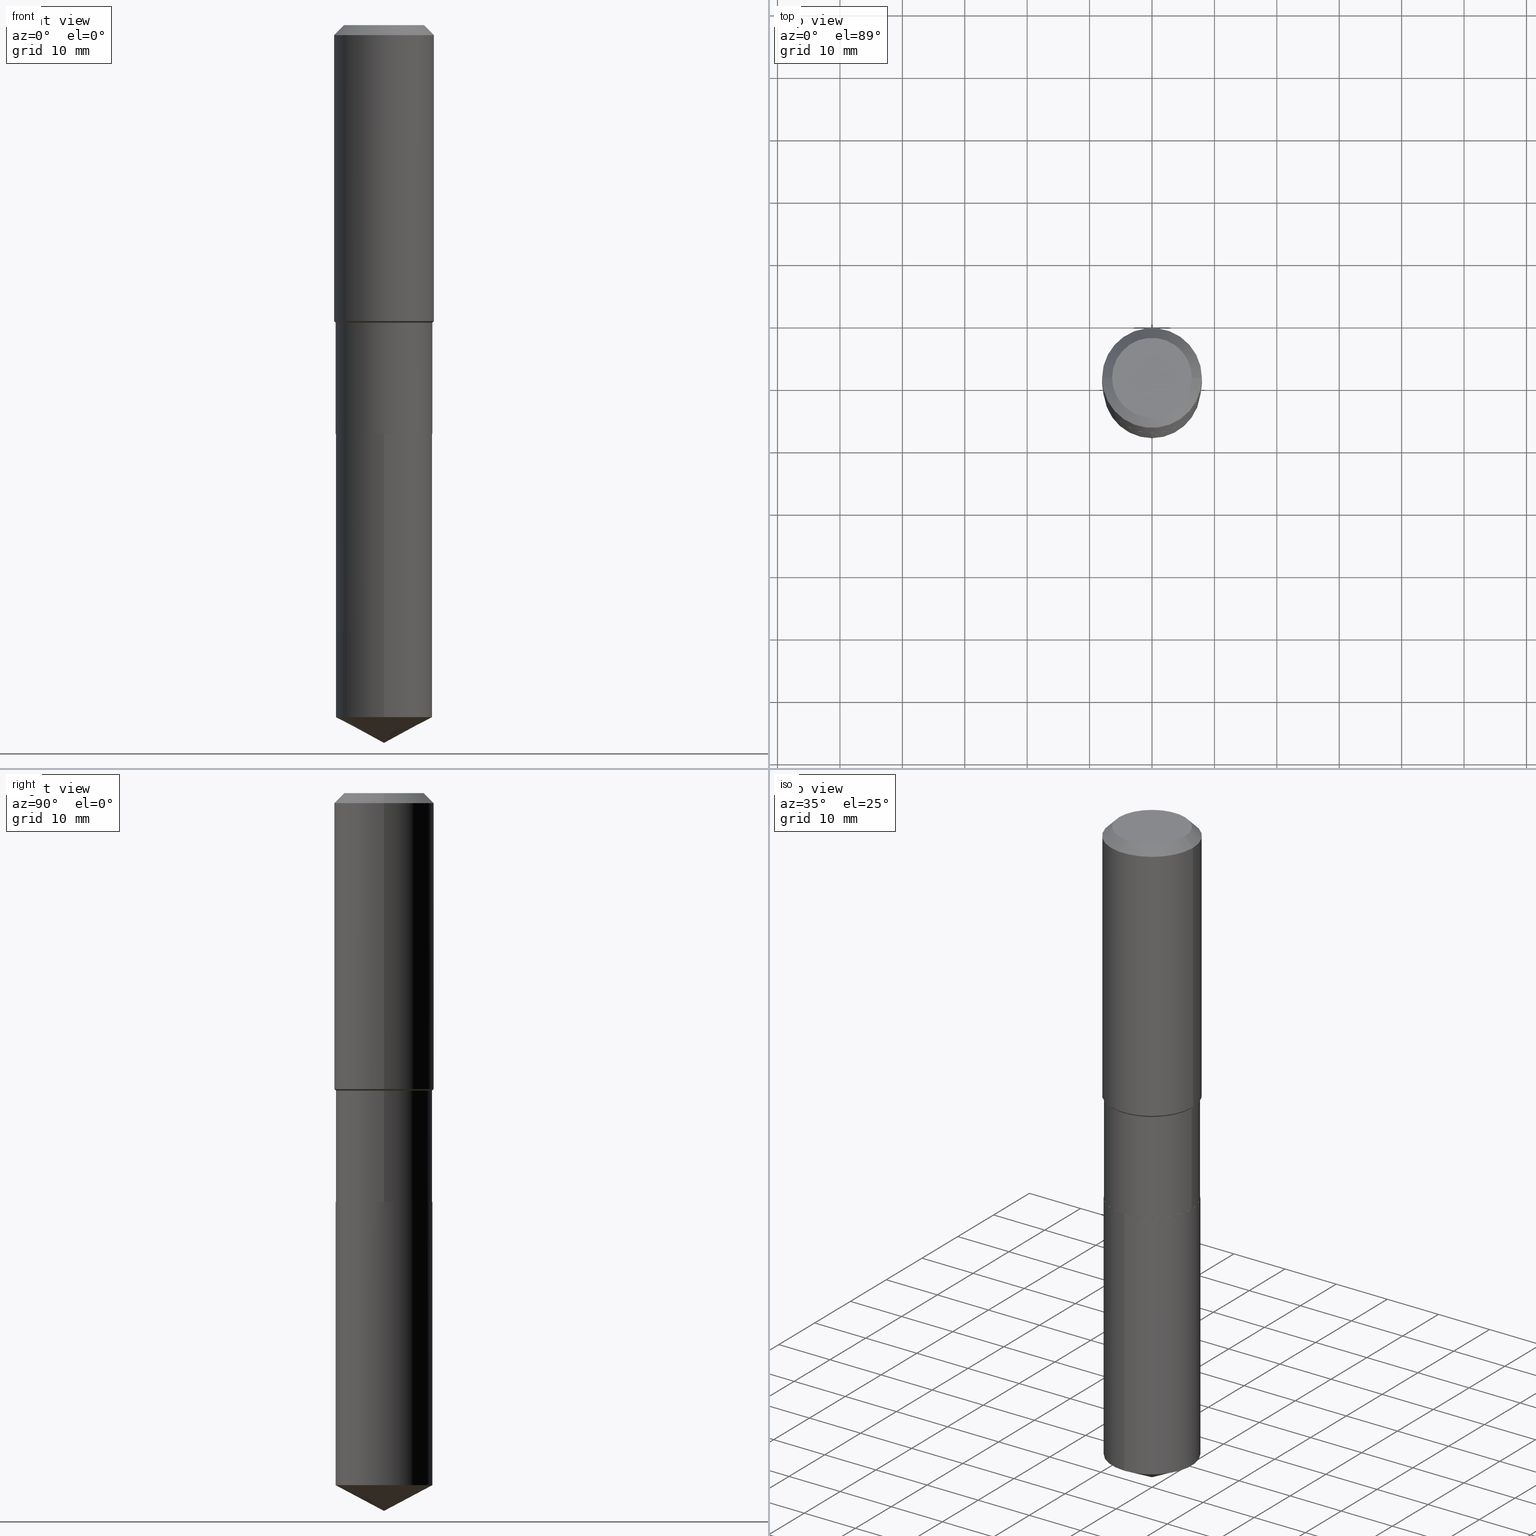
[diagram: canonical four-view strip — front | top / right | iso, engineering-drawing reading convention]
A machine part, canonical four-view strip (front | top / right | iso — engineering-drawing reading convention). The complete STEP part file that produces these views, byte-faithful:
ISO-10303-21;
HEADER;
FILE_DESCRIPTION (( 'STEP AP203' ),
    '1' );
FILE_NAME ('67700.STEP',
    '2024-04-25T09:48:29',
    ( '' ),
    ( '' ),
    'SwSTEP 2.0',
    'SolidWorks 2023',
    '' );
FILE_SCHEMA (( 'CONFIG_CONTROL_DESIGN' ));
ENDSEC;

DATA;
#1 = EDGE_LOOP ( 'NONE', ( #3, #447 ) ) ;
#2 = PERSON_AND_ORGANIZATION_ROLE ( 'classification_officer' ) ;
#3 = ORIENTED_EDGE ( 'NONE', *, *, #165, .T. ) ;
#4 = CIRCLE ( 'NONE', #34, 0.3051000000000000378 ) ;
#5 = CARTESIAN_POINT ( 'NONE',  ( 0.3045999999999999819, -1.113049336009805554E-14, -2.578699999999999548 ) ) ;
#6 = DATE_AND_TIME ( #315, #369 ) ;
#7 = ORIENTED_EDGE ( 'NONE', *, *, #322, .T. ) ;
#8 = CARTESIAN_POINT ( 'NONE',  ( 0.3050999999999999268, -2.130501912962079080E-15, 1.487721534295339594E-29 ) ) ;
#9 =( LENGTH_UNIT ( ) NAMED_UNIT ( * ) SI_UNIT ( $, .METRE. ) );
#10 = EDGE_LOOP ( 'NONE', ( #450, #489, #122, #253 ) ) ;
#11 = CARTESIAN_POINT ( 'NONE',  ( -0.3050999999999999823, -5.609757943602922842E-15, -2.578199999999999381 ) ) ;
#12 = DIRECTION ( 'NONE',  ( -2.445658256467023236E-29, 3.491210035256643450E-15, 1.000000000000000000 ) ) ;
#13 = APPROVAL_STATUS ( 'not_yet_approved' ) ;
#14 = CONICAL_SURFACE ( 'NONE', #82, 74.04434902938345431, 1.082104136236486047 ) ;
#15 = AXIS2_PLACEMENT_3D ( 'NONE', #60, #171, #210 ) ;
#16 = DIRECTION ( 'NONE',  ( 2.445468806185136597E-29, -3.491481338843145583E-15, -1.000000000000000000 ) ) ;
#17 = CARTESIAN_POINT ( 'NONE',  ( -2.130501912961973373E-15, -0.3051000000000153034, -4.365375452400082068 ) ) ;
#18 = DIRECTION ( 'NONE',  ( -2.445468806185136597E-29, 3.491481338843145583E-15, 1.000000000000000000 ) ) ;
#19 = VERTEX_POINT ( 'NONE', #112 ) ;
#20 = DIRECTION ( 'NONE',  ( -2.445468806185136597E-29, 3.491481338843145583E-15, 1.000000000000000000 ) ) ;
#21 = ADVANCED_FACE ( 'NONE', ( #42 ), #113, .T. ) ;
#22 = DIRECTION ( 'NONE',  ( 1.000000000000000000, -6.982962677686266711E-15, 0.000000000000000000 ) ) ;
#23 = ADVANCED_FACE ( 'NONE', ( #230 ), #14, .T. ) ;
#24 = CARTESIAN_POINT ( 'NONE',  ( 6.306130410509609656E-29, -9.003482928474816704E-15, -2.578699999999999548 ) ) ;
#25 = AXIS2_PLACEMENT_3D ( 'NONE', #169, #120, #424 ) ;
#26 = EDGE_LOOP ( 'NONE', ( #183, #277, #65, #206 ) ) ;
#27 = DIRECTION ( 'NONE',  ( -2.445468806185136597E-29, 3.491481338843145583E-15, 1.000000000000000000 ) ) ;
#28 = COORDINATED_UNIVERSAL_TIME_OFFSET ( 5, 0, .BEHIND. ) ;
#29 = AXIS2_PLACEMENT_3D ( 'NONE', #161, #352, #241 ) ;
#30 = PRODUCT ( '67700', '67700', '', ( #385 ) ) ;
#31 = LOCAL_TIME ( 5, 48, 29.00000000000000000, #453 ) ;
#32 = ADVANCED_FACE ( 'NONE', ( #36 ), #267, .F. ) ;
#33 = EDGE_CURVE ( 'NONE', #377, #414, #144, .T. ) ;
#34 = AXIS2_PLACEMENT_3D ( 'NONE', #486, #225, #182 ) ;
#35 = VECTOR ( 'NONE', #51, 39.37007874015748143 ) ;
#36 = FACE_OUTER_BOUND ( 'NONE', #458, .T. ) ;
#37 = ORIENTED_EDGE ( 'NONE', *, *, #208, .F. ) ;
#38 = CARTESIAN_POINT ( 'NONE',  ( -0.3149500000000000077, 1.979355685803558833E-15, -0.06299000000000036514 ) ) ;
#39 = FACE_OUTER_BOUND ( 'NONE', #92, .T. ) ;
#40 = PERSON_AND_ORGANIZATION ( #62, #350 ) ;
#41 = ORIENTED_EDGE ( 'NONE', *, *, #83, .T. ) ;
#42 = FACE_OUTER_BOUND ( 'NONE', #312, .T. ) ;
#43 = CARTESIAN_POINT ( 'NONE',  ( 0.000000000000000000, 0.000000000000000000, 0.000000000000000000 ) ) ;
#44 = VERTEX_POINT ( 'NONE', #75 ) ;
#45 = VECTOR ( 'NONE', #136, 39.37007874015748143 ) ;
#46 = CARTESIAN_POINT ( 'NONE',  ( 4.590144949209500643E-29, -6.553510473008583144E-15, -1.876999999999999780 ) ) ;
#47 = PERSON_AND_ORGANIZATION_ROLE ( 'creator' ) ;
#48 = VERTEX_POINT ( 'NONE', #446 ) ;
#49 = DIRECTION ( 'NONE',  ( 1.000000000000000000, -6.982962677686266711E-15, 0.000000000000000000 ) ) ;
#50 = EDGE_CURVE ( 'NONE', #271, #19, #115, .T. ) ;
#51 = DIRECTION ( 'NONE',  ( -0.7071067811865453523, 2.468850131082234184E-15, -0.7071067811865496822 ) ) ;
#52 = DIRECTION ( 'NONE',  ( -6.982962677686265133E-15, -1.000000000000000000, 3.581577179500836259E-15 ) ) ;
#53 = CARTESIAN_POINT ( 'NONE',  ( -0.3050999999999999268, -5.609757943602924419E-15, -1.876999999999999780 ) ) ;
#54 = AXIS2_PLACEMENT_3D ( 'NONE', #94, #137, #476 ) ;
#55 = CARTESIAN_POINT ( 'NONE',  ( -9.427742298522569579E-47, 1.346031739168368629E-32, 3.855188123715871501E-18 ) ) ;
#56 = SECURITY_CLASSIFICATION ( '', '', #353 ) ;
#57 = DIRECTION ( 'NONE',  ( -0.7071067811864026886, 7.493145998869830357E-15, 0.7071067811866923458 ) ) ;
#58 = ORIENTED_EDGE ( 'NONE', *, *, #260, .F. ) ;
#59 = CARTESIAN_POINT ( 'NONE',  ( 1.540400801016026329E-30, -2.199284095337310135E-16, -0.06299000000000036514 ) ) ;
#60 = CARTESIAN_POINT ( 'NONE',  ( -4.713871149261284790E-47, 6.730158695841843144E-33, 1.927594061857935750E-18 ) ) ;
#61 = DIRECTION ( 'NONE',  ( -2.445658256467023236E-29, 3.491210035256643844E-15, 1.000000000000000000 ) ) ;
#62 = PERSON ( 'UNSPECIFIED', 'UNSPECIFIED', 'UNSPECIFIED', ('UNSPECIFIED'), ('UNSPECIFIED'), ('UNSPECIFIED') ) ;
#63 = APPLICATION_CONTEXT ( 'configuration controlled 3d designs of mechanical parts and assemblies' ) ;
#64 = EDGE_CURVE ( 'NONE', #414, #190, #403, .T. ) ;
#65 = ORIENTED_EDGE ( 'NONE', *, *, #127, .T. ) ;
#66 = CLOSED_SHELL ( 'NONE', ( #218, #23, #172, #69, #86 ) ) ;
#67 = AXIS2_PLACEMENT_3D ( 'NONE', #204, #93, #255 ) ;
#68 = EDGE_CURVE ( 'NONE', #427, #386, #4, .T. ) ;
#69 = ADVANCED_FACE ( 'NONE', ( #73 ), #117, .T. ) ;
#70 = PRODUCT_RELATED_PRODUCT_CATEGORY ( 'detail', '', ( #30 ) ) ;
#71 = PLANE ( 'NONE',  #262 ) ;
#72 = CARTESIAN_POINT ( 'NONE',  ( -0.3050999999999999268, -4.385644586204518785E-15, -1.876999999999999780 ) ) ;
#73 = FACE_OUTER_BOUND ( 'NONE', #479, .T. ) ;
#74 = ORIENTED_EDGE ( 'NONE', *, *, #445, .T. ) ;
#75 = CARTESIAN_POINT ( 'NONE',  ( -0.3149500000000000077, -1.131669549400917718E-15, -0.06299000000000036514 ) ) ;
#76 = ORIENTED_EDGE ( 'NONE', *, *, #278, .T. ) ;
#77 = COORDINATED_UNIVERSAL_TIME_OFFSET ( 5, 0, .BEHIND. ) ;
#78 = ORIENTED_EDGE ( 'NONE', *, *, #180, .T. ) ;
#79 = DIRECTION ( 'NONE',  ( -2.445468806185136597E-29, 3.491481338843145583E-15, 1.000000000000000000 ) ) ;
#80 = LENGTH_MEASURE_WITH_UNIT ( LENGTH_MEASURE( 0.02539999999999999897 ), #9 );
#81 = VERTEX_POINT ( 'NONE', #178 ) ;
#82 = AXIS2_PLACEMENT_3D ( 'NONE', #348, #296, #298 ) ;
#83 = EDGE_CURVE ( 'NONE', #212, #48, #473, .T. ) ;
#84 = CONICAL_SURFACE ( 'NONE', #248, 0.3050999999999999268, 0.7853981633974552734 ) ;
#85 = CARTESIAN_POINT ( 'NONE',  ( 1.107296232198009260E-28, -1.580680255562797739E-14, -4.527599999999999625 ) ) ;
#86 = ADVANCED_FACE ( 'NONE', ( #39 ), #71, .F. ) ;
#87 = APPROVAL_ROLE ( '' ) ;
#88 = ORIENTED_EDGE ( 'NONE', *, *, #33, .F. ) ;
#89 = CARTESIAN_POINT ( 'NONE',  ( 1.540400801016026329E-30, -2.199284095337310135E-16, -0.06299000000000036514 ) ) ;
#90 = PERSON_AND_ORGANIZATION ( #62, #350 ) ;
#91 = DIRECTION ( 'NONE',  ( 1.000000000000000000, -6.982962677686269866E-15, 0.000000000000000000 ) ) ;
#92 = EDGE_LOOP ( 'NONE', ( #152, #41 ) ) ;
#93 = DIRECTION ( 'NONE',  ( 2.445468806185136597E-29, -3.491481338843145583E-15, -1.000000000000000000 ) ) ;
#94 = CARTESIAN_POINT ( 'NONE',  ( 6.306130410509609656E-29, -9.003482928474816704E-15, -2.578699999999999548 ) ) ;
#95 = EDGE_CURVE ( 'NONE', #271, #423, #326, .T. ) ;
#96 = AXIS2_PLACEMENT_3D ( 'NONE', #367, #287, #400 ) ;
#97 = DIRECTION ( 'NONE',  ( -2.445468806185136877E-29, 3.491481338843145188E-15, 1.000000000000000000 ) ) ;
#98 = DIRECTION ( 'NONE',  ( 1.000000000000000000, -6.982962677686265133E-15, 4.876176775795935793E-29 ) ) ;
#99 = DIRECTION ( 'NONE',  ( -2.445468806185136597E-29, 3.491481338843145583E-15, 1.000000000000000000 ) ) ;
#100 = APPROVAL_ROLE ( '' ) ;
#101 = DIRECTION ( 'NONE',  ( 1.000000000000000000, -6.982962677686265133E-15, 4.876176775795935793E-29 ) ) ;
#102 = AXIS2_PLACEMENT_3D ( 'NONE', #195, #99, #22 ) ;
#103 = AXIS2_PLACEMENT_3D ( 'NONE', #159, #357, #126 ) ;
#104 = APPROVAL_PERSON_ORGANIZATION ( #187, #329, #100 ) ;
#105 = ADVANCED_FACE ( 'NONE', ( #304 ), #211, .T. ) ;
#106 = VECTOR ( 'NONE', #428, 39.37007874015748143 ) ;
#107 = DIRECTION ( 'NONE',  ( -2.445468806185136597E-29, 3.491481338843145583E-15, 1.000000000000000000 ) ) ;
#108 = DIRECTION ( 'NONE',  ( 0.7071067811864026886, -2.468850131080739687E-15, 0.7071067811866923458 ) ) ;
#109 = CC_DESIGN_PERSON_AND_ORGANIZATION_ASSIGNMENT ( #284, #198, ( #415 ) ) ;
#110 = VERTEX_POINT ( 'NONE', #437 ) ;
#111 = DIRECTION ( 'NONE',  ( -2.445468806185136597E-29, 3.491481338843145583E-15, 1.000000000000000000 ) ) ;
#112 = CARTESIAN_POINT ( 'NONE',  ( 0.3050999999999999268, -1.113223910076747310E-14, -2.578199999999999381 ) ) ;
#113 = CONICAL_SURFACE ( 'NONE', #347, 0.3050999999999999268, 0.7853981633974552734 ) ;
#114 = EDGE_LOOP ( 'NONE', ( #413, #78, #7, #470 ) ) ;
#115 = LINE ( 'NONE', #5, #303 ) ;
#116 = ORIENTED_EDGE ( 'NONE', *, *, #322, .F. ) ;
#117 = CYLINDRICAL_SURFACE ( 'NONE', #188, 0.3050999999999999823 ) ;
#118 = ORIENTED_EDGE ( 'NONE', *, *, #83, .F. ) ;
#119 = EDGE_CURVE ( 'NONE', #377, #410, #418, .T. ) ;
#120 = DIRECTION ( 'NONE',  ( -2.445658256467023236E-29, 3.491210035256643450E-15, 1.000000000000000000 ) ) ;
#121 = APPLICATION_PROTOCOL_DEFINITION ( 'international standard', 'config_control_design', 1994, #63 ) ;
#122 = ORIENTED_EDGE ( 'NONE', *, *, #138, .T. ) ;
#123 = DIRECTION ( 'NONE',  ( -2.445468806185136877E-29, 3.491481338843145188E-15, 1.000000000000000000 ) ) ;
#124 = VECTOR ( 'NONE', #219, 39.37007874015748143 ) ;
#125 = DIRECTION ( 'NONE',  ( -2.445468806185136597E-29, 3.491481338843145583E-15, 1.000000000000000000 ) ) ;
#126 = DIRECTION ( 'NONE',  ( 1.000000000000000000, -6.982962677686268288E-15, 0.000000000000000000 ) ) ;
#127 = EDGE_CURVE ( 'NONE', #19, #377, #433, .T. ) ;
#128 = CC_DESIGN_PERSON_AND_ORGANIZATION_ASSIGNMENT ( #422, #2, ( #56 ) ) ;
#129 = CARTESIAN_POINT ( 'NONE',  ( 0.000000000000000000, 0.000000000000000000, 0.000000000000000000 ) ) ;
#130 = FACE_OUTER_BOUND ( 'NONE', #343, .T. ) ;
#131 = CALENDAR_DATE ( 2024, 25, 4 ) ;
#132 = CYLINDRICAL_SURFACE ( 'NONE', #96, 0.3149500000000001743 ) ;
#133 = CIRCLE ( 'NONE', #103, 0.3149500000000002298 ) ;
#134 = CYLINDRICAL_SURFACE ( 'NONE', #29, 0.3149500000000001743 ) ;
#135 = CARTESIAN_POINT ( 'NONE',  ( 1.107198525109629157E-28, -1.580820177674500179E-14, -4.527599999999999625 ) ) ;
#136 = DIRECTION ( 'NONE',  ( 6.273719981627762921E-15, 0.8829475928589293199, 0.4694715627858860874 ) ) ;
#137 = DIRECTION ( 'NONE',  ( -2.445658256467023236E-29, 3.491210035256643450E-15, 1.000000000000000000 ) ) ;
#138 = EDGE_CURVE ( 'NONE', #224, #44, #163, .T. ) ;
#139 = AXIS2_PLACEMENT_3D ( 'NONE', #375, #300, #448 ) ;
#140 = AXIS2_PLACEMENT_3D ( 'NONE', #245, #281, #98 ) ;
#141 = CONICAL_SURFACE ( 'NONE', #67, 0.3149500000000000077, 0.7853981633974452814 ) ;
#142 = AXIS2_PLACEMENT_3D ( 'NONE', #59, #16, #360 ) ;
#143 = PRODUCT_DEFINITION_FORMATION_WITH_SPECIFIED_SOURCE ( 'ANY', '', #30, .NOT_KNOWN. ) ;
#144 = LINE ( 'NONE', #154, #383 ) ;
#145 = ORIENTED_EDGE ( 'NONE', *, *, #95, .T. ) ;
#146 = CARTESIAN_POINT ( 'NONE',  ( 0.3045999999999999819, -1.113049336009805554E-14, -2.578699999999999548 ) ) ;
#147 = ADVANCED_FACE ( 'NONE', ( #130 ), #141, .T. ) ;
#148 = EDGE_CURVE ( 'NONE', #44, #224, #434, .T. ) ;
#149 = DIRECTION ( 'NONE',  ( 0.7071067811865524577, -2.468850131082308731E-15, 0.7071067811865425767 ) ) ;
#150 = ORIENTED_EDGE ( 'NONE', *, *, #405, .T. ) ;
#151 = DIRECTION ( 'NONE',  ( -2.438088387897960049E-29, 3.491481338843145188E-15, 1.000000000000000000 ) ) ;
#152 = ORIENTED_EDGE ( 'NONE', *, *, #341, .T. ) ;
#153 = APPROVAL_PERSON_ORGANIZATION ( #431, #209, #226 ) ;
#154 = CARTESIAN_POINT ( 'NONE',  ( 0.3050999999999999268, -8.684012385970661829E-15, -1.876999999999999780 ) ) ;
#155 = EDGE_CURVE ( 'NONE', #386, #427, #189, .T. ) ;
#156 = COORDINATED_UNIVERSAL_TIME_OFFSET ( 5, 0, .BEHIND. ) ;
#157 = ADVANCED_FACE ( 'NONE', ( #363 ), #84, .T. ) ;
#158 = ORIENTED_EDGE ( 'NONE', *, *, #33, .T. ) ;
#159 = CARTESIAN_POINT ( 'NONE',  ( 4.566057081468576714E-29, -6.519119381820977551E-15, -1.867149999999999421 ) ) ;
#160 = EDGE_LOOP ( 'NONE', ( #145, #388, #37, #482 ) ) ;
#161 = CARTESIAN_POINT ( 'NONE',  ( 0.000000000000000000, 0.000000000000000000, 0.000000000000000000 ) ) ;
#162 = DIRECTION ( 'NONE',  ( 1.000000000000000000, 0.000000000000000000, 0.000000000000000000 ) ) ;
#163 = CIRCLE ( 'NONE', #411, 0.3149500000000000077 ) ;
#164 = VECTOR ( 'NONE', #432, 39.37007874015748143 ) ;
#165 = EDGE_CURVE ( 'NONE', #110, #81, #419, .T. ) ;
#166 = CARTESIAN_POINT ( 'NONE',  ( 1.067572798229882774E-28, -1.524114219764069314E-14, -4.365375452400082956 ) ) ;
#167 = PERSON_AND_ORGANIZATION ( #62, #350 ) ;
#168 = CARTESIAN_POINT ( 'NONE',  ( -0.3050999999999999268, 2.167865886804065147E-15, -1.500767096036771338E-29 ) ) ;
#169 = CARTESIAN_POINT ( 'NONE',  ( 6.306130410509609656E-29, -9.003482928474816704E-15, -2.578699999999999548 ) ) ;
#170 = ORIENTED_EDGE ( 'NONE', *, *, #64, .T. ) ;
#171 = DIRECTION ( 'NONE',  ( 2.438088387897960049E-29, -3.491481338843145188E-15, -1.000000000000000000 ) ) ;
#172 = ADVANCED_FACE ( 'NONE', ( #286 ), #474, .T. ) ;
#173 = FACE_OUTER_BOUND ( 'NONE', #114, .T. ) ;
#174 = ORIENTED_EDGE ( 'NONE', *, *, #229, .F. ) ;
#175 = DIRECTION ( 'NONE',  ( 1.000000000000000000, -6.982962677686269866E-15, 0.000000000000000000 ) ) ;
#176 = CONICAL_SURFACE ( 'NONE', #451, 0.3045999999999999819, 0.7853981633972434429 ) ;
#177 = AXIS2_PLACEMENT_3D ( 'NONE', #378, #342, #344 ) ;
#178 = CARTESIAN_POINT ( 'NONE',  ( 0.2519600000000000173, -2.054606664725195058E-15, 3.855188123729206640E-18 ) ) ;
#179 = AXIS2_PLACEMENT_3D ( 'NONE', #483, #107, #370 ) ;
#180 = EDGE_CURVE ( 'NONE', #190, #414, #133, .T. ) ;
#181 = ORIENTED_EDGE ( 'NONE', *, *, #252, .F. ) ;
#182 = DIRECTION ( 'NONE',  ( -6.982962677686265133E-15, -1.000000000000000000, 3.581577179500836259E-15 ) ) ;
#183 = ORIENTED_EDGE ( 'NONE', *, *, #445, .F. ) ;
#184 = DIRECTION ( 'NONE',  ( 1.000000000000000000, -6.982962677686265922E-15, 4.876176775795935793E-29 ) ) ;
#185 = PERSON_AND_ORGANIZATION_ROLE ( 'design_supplier' ) ;
#186 = EDGE_LOOP ( 'NONE', ( #261, #150, #302, #181 ) ) ;
#187 = PERSON_AND_ORGANIZATION ( #62, #350 ) ;
#188 = AXIS2_PLACEMENT_3D ( 'NONE', #233, #337, #452 ) ;
#189 = CIRCLE ( 'NONE', #295, 0.3051000000000000378 ) ;
#190 = VERTEX_POINT ( 'NONE', #387 ) ;
#191 = LOCAL_TIME ( 5, 48, 29.00000000000000000, #349 ) ;
#192 = DIRECTION ( 'NONE',  ( -2.445468806185136597E-29, 3.491481338843145583E-15, 1.000000000000000000 ) ) ;
#193 = DATE_AND_TIME ( #467, #191 ) ;
#194 = ORIENTED_EDGE ( 'NONE', *, *, #260, .T. ) ;
#195 = CARTESIAN_POINT ( 'NONE',  ( 4.590144949209500643E-29, -6.553510473008583144E-15, -1.876999999999999780 ) ) ;
#196 =( NAMED_UNIT ( * ) PLANE_ANGLE_UNIT ( ) SI_UNIT ( $, .RADIAN. ) );
#197 = FACE_OUTER_BOUND ( 'NONE', #10, .T. ) ;
#198 = PERSON_AND_ORGANIZATION_ROLE ( 'creator' ) ;
#199 = FACE_OUTER_BOUND ( 'NONE', #1, .T. ) ;
#200 = VECTOR ( 'NONE', #202, 39.37007874015748143 ) ;
#201 = ORIENTED_EDGE ( 'NONE', *, *, #119, .T. ) ;
#202 = DIRECTION ( 'NONE',  ( -2.445658256467023236E-29, 3.491210035256643844E-15, 1.000000000000000000 ) ) ;
#203 = LINE ( 'NONE', #361, #106 ) ;
#204 = CARTESIAN_POINT ( 'NONE',  ( 1.540400801016026329E-30, -2.199284095337310135E-16, -0.06299000000000036514 ) ) ;
#205 = CARTESIAN_POINT ( 'NONE',  ( -0.3045999999999999819, -6.836520528175441255E-15, -2.578699999999999548 ) ) ;
#206 = ORIENTED_EDGE ( 'NONE', *, *, #278, .F. ) ;
#207 = CARTESIAN_POINT ( 'NONE',  ( 4.590144949209500643E-29, -6.553510473008583144E-15, -1.876999999999999780 ) ) ;
#208 = EDGE_CURVE ( 'NONE', #19, #290, #371, .T. ) ;
#209 = APPROVAL ( #13, 'UNSPECIFIED' ) ;
#210 = DIRECTION ( 'NONE',  ( -1.000000000000000000, 6.982962677686265922E-15, -4.876176775795935793E-29 ) ) ;
#211 = CONICAL_SURFACE ( 'NONE', #487, 0.3045999999999999819, 0.7853981633972434429 ) ;
#212 = VERTEX_POINT ( 'NONE', #397 ) ;
#213 = ADVANCED_FACE ( 'NONE', ( #472 ), #134, .T. ) ;
#214 = CC_DESIGN_DATE_AND_TIME_ASSIGNMENT ( #193, #425, ( #415 ) ) ;
#215 = AXIS2_PLACEMENT_3D ( 'NONE', #456, #79, #408 ) ;
#216 = CIRCLE ( 'NONE', #404, 0.2519600000000000173 ) ;
#217 = CARTESIAN_POINT ( 'NONE',  ( 6.306130410509609656E-29, -9.003482928474816704E-15, -2.578699999999999548 ) ) ;
#218 = ADVANCED_FACE ( 'NONE', ( #395 ), #459, .T. ) ;
#219 = DIRECTION ( 'NONE',  ( -0.7071067811865524577, 7.493145998870371515E-15, 0.7071067811865425767 ) ) ;
#220 = MANIFOLD_SOLID_BREP ( 'Body-Move/Copy2[2]', #294 ) ;
#221 = DIRECTION ( 'NONE',  ( 6.982962677686265922E-15, 1.000000000000000000, -3.491210035256643844E-15 ) ) ;
#222 = CIRCLE ( 'NONE', #332, 0.3045999999999999819 ) ;
#223 = CC_DESIGN_APPROVAL ( #209, ( #143 ) ) ;
#224 = VERTEX_POINT ( 'NONE', #289 ) ;
#225 = DIRECTION ( 'NONE',  ( -2.445658256467023236E-29, 3.491210035256643450E-15, 1.000000000000000000 ) ) ;
#226 = APPROVAL_ROLE ( '' ) ;
#227 = VERTEX_POINT ( 'NONE', #85 ) ;
#228 = MANIFOLD_SOLID_BREP ( 'Body-Move/Copy2[1]', #66 ) ;
#229 = EDGE_CURVE ( 'NONE', #386, #212, #238, .T. ) ;
#230 = FACE_OUTER_BOUND ( 'NONE', #382, .T. ) ;
#231 = DATE_AND_TIME ( #345, #374 ) ;
#232 = ORIENTED_EDGE ( 'NONE', *, *, #335, .F. ) ;
#233 = CARTESIAN_POINT ( 'NONE',  ( 6.306130410509609656E-29, -9.003482928474816704E-15, -2.578699999999999548 ) ) ;
#234 = DATE_TIME_ROLE ( 'classification_date' ) ;
#235 = ORIENTED_EDGE ( 'NONE', *, *, #243, .F. ) ;
#236 = DIRECTION ( 'NONE',  ( 1.000000000000000000, -6.982962677686266711E-15, 0.000000000000000000 ) ) ;
#237 = AXIS2_PLACEMENT_3D ( 'NONE', #43, #391, #162 ) ;
#238 = LINE ( 'NONE', #390, #200 ) ;
#239 = ORIENTED_EDGE ( 'NONE', *, *, #119, .F. ) ;
#240 = LINE ( 'NONE', #313, #462 ) ;
#241 = DIRECTION ( 'NONE',  ( 1.000000000000000000, -6.982962677686265922E-15, 4.876176775795935232E-29 ) ) ;
#242 = ADVANCED_FACE ( 'NONE', ( #197 ), #276, .T. ) ;
#243 = EDGE_CURVE ( 'NONE', #227, #386, #469, .T. ) ;
#244 = ORIENTED_EDGE ( 'NONE', *, *, #148, .T. ) ;
#245 = CARTESIAN_POINT ( 'NONE',  ( 0.000000000000000000, 0.000000000000000000, 0.000000000000000000 ) ) ;
#246 = DIRECTION ( 'NONE',  ( -2.445658256467023236E-29, 3.491210035256643450E-15, 1.000000000000000000 ) ) ;
#247 = LINE ( 'NONE', #468, #316 ) ;
#248 = AXIS2_PLACEMENT_3D ( 'NONE', #314, #18, #355 ) ;
#249 = DIRECTION ( 'NONE',  ( 1.000000000000000000, -6.982962677686264344E-15, 0.000000000000000000 ) ) ;
#250 = ORIENTED_EDGE ( 'NONE', *, *, #440, .F. ) ;
#251 = CARTESIAN_POINT ( 'NONE',  ( -2.130501912962016366E-15, -0.3051000000000089751, -2.578699999999998216 ) ) ;
#252 = EDGE_CURVE ( 'NONE', #290, #19, #338, .T. ) ;
#253 = ORIENTED_EDGE ( 'NONE', *, *, #301, .F. ) ;
#254 = CC_DESIGN_PERSON_AND_ORGANIZATION_ASSIGNMENT ( #90, #185, ( #143 ) ) ;
#255 = DIRECTION ( 'NONE',  ( -1.000000000000000000, 6.982962677686266711E-15, 0.000000000000000000 ) ) ;
#256 = CARTESIAN_POINT ( 'NONE',  ( 0.3149500000000002298, -8.718403477158269000E-15, -1.867149999999999421 ) ) ;
#257 = APPLICATION_CONTEXT ( 'configuration controlled 3d designs of mechanical parts and assemblies' ) ;
#258 = AXIS2_PLACEMENT_3D ( 'NONE', #279, #310, #249 ) ;
#259 = CC_DESIGN_SECURITY_CLASSIFICATION ( #56, ( #143 ) ) ;
#260 = EDGE_CURVE ( 'NONE', #410, #190, #409, .T. ) ;
#261 = ORIENTED_EDGE ( 'NONE', *, *, #384, .F. ) ;
#262 = AXIS2_PLACEMENT_3D ( 'NONE', #217, #264, #221 ) ;
#263 = EDGE_CURVE ( 'NONE', #81, #110, #216, .T. ) ;
#264 = DIRECTION ( 'NONE',  ( 2.445658256467022676E-29, -3.491210035256643844E-15, -1.000000000000000000 ) ) ;
#265 = ORIENTED_EDGE ( 'NONE', *, *, #405, .F. ) ;
#266 = DIRECTION ( 'NONE',  ( -2.445468806185136597E-29, 3.491481338843145583E-15, 1.000000000000000000 ) ) ;
#267 = PLANE ( 'NONE',  #366 ) ;
#268 = VECTOR ( 'NONE', #471, 39.37007874015748143 ) ;
#269 = ORIENTED_EDGE ( 'NONE', *, *, #155, .T. ) ;
#270 = DATE_AND_TIME ( #381, #31 ) ;
#271 = VERTEX_POINT ( 'NONE', #146 ) ;
#272 = DIRECTION ( 'NONE',  ( -2.445468806185136597E-29, 3.491481338843145583E-15, 1.000000000000000000 ) ) ;
#273 = APPROVAL_STATUS ( 'not_yet_approved' ) ;
#274 = ORIENTED_EDGE ( 'NONE', *, *, #341, .F. ) ;
#275 = PERSON_AND_ORGANIZATION ( #62, #350 ) ;
#276 = CONICAL_SURFACE ( 'NONE', #142, 0.3149500000000000077, 0.7853981633974452814 ) ;
#277 = ORIENTED_EDGE ( 'NONE', *, *, #252, .T. ) ;
#278 = EDGE_CURVE ( 'NONE', #410, #377, #305, .T. ) ;
#279 = CARTESIAN_POINT ( 'NONE',  ( 6.304907676106516855E-29, -9.001737187805394412E-15, -2.578199999999999381 ) ) ;
#280 =( NAMED_UNIT ( * ) SI_UNIT ( $, .STERADIAN. ) SOLID_ANGLE_UNIT ( ) );
#281 = DIRECTION ( 'NONE',  ( -2.445468806185136597E-29, 3.491481338843145583E-15, 1.000000000000000000 ) ) ;
#282 = ORIENTED_EDGE ( 'NONE', *, *, #155, .F. ) ;
#283 = DIRECTION ( 'NONE',  ( -2.445468806185136597E-29, 3.491481338843145583E-15, 1.000000000000000000 ) ) ;
#284 = PERSON_AND_ORGANIZATION ( #62, #350 ) ;
#285 = CYLINDRICAL_SURFACE ( 'NONE', #140, 0.3050999999999999268 ) ;
#286 = FACE_OUTER_BOUND ( 'NONE', #429, .T. ) ;
#287 = DIRECTION ( 'NONE',  ( -2.445468806185136597E-29, 3.491481338843145583E-15, 1.000000000000000000 ) ) ;
#288 = AXIS2_PLACEMENT_3D ( 'NONE', #207, #111, #236 ) ;
#289 = CARTESIAN_POINT ( 'NONE',  ( 0.3149500000000000077, -2.419212504871020909E-15, -0.06299000000000036514 ) ) ;
#290 = VERTEX_POINT ( 'NONE', #11 ) ;
#291 = CARTESIAN_POINT ( 'NONE',  ( 2.167865886804172038E-15, 0.3050999999999847723, -4.365375452400083844 ) ) ;
#292 = LINE ( 'NONE', #135, #164 ) ;
#293 = EDGE_CURVE ( 'NONE', #190, #44, #240, .T. ) ;
#294 = CLOSED_SHELL ( 'NONE', ( #488, #242, #213, #21, #331, #334, #157, #477, #147, #426, #32, #105 ) ) ;
#295 = AXIS2_PLACEMENT_3D ( 'NONE', #166, #246, #52 ) ;
#296 = DIRECTION ( 'NONE',  ( -2.445658256467023236E-29, 3.491210035256643450E-15, 1.000000000000000000 ) ) ;
#297 = CARTESIAN_POINT ( 'NONE',  ( 1.107297088973840288E-28, -1.580680255562797739E-14, -4.527599999999999625 ) ) ;
#298 = DIRECTION ( 'NONE',  ( -6.982962677686266711E-15, -1.000000000000000000, 3.541896320645564813E-15 ) ) ;
#299 = EDGE_LOOP ( 'NONE', ( #58, #76, #158, #444 ) ) ;
#300 = DIRECTION ( 'NONE',  ( -2.445468806185136597E-29, 3.491481338843145583E-15, 1.000000000000000000 ) ) ;
#301 = EDGE_CURVE ( 'NONE', #110, #44, #389, .T. ) ;
#302 = ORIENTED_EDGE ( 'NONE', *, *, #50, .T. ) ;
#303 = VECTOR ( 'NONE', #108, 39.37007874015748143 ) ;
#304 = FACE_OUTER_BOUND ( 'NONE', #186, .T. ) ;
#305 = CIRCLE ( 'NONE', #288, 0.3050999999999999268 ) ;
#306 = LOCAL_TIME ( 5, 48, 29.00000000000000000, #28 ) ;
#307 = ORIENTED_EDGE ( 'NONE', *, *, #393, .F. ) ;
#308 = CARTESIAN_POINT ( 'NONE',  ( 6.306130410509609656E-29, -9.003482928474816704E-15, -2.578699999999999548 ) ) ;
#309 = ORIENTED_EDGE ( 'NONE', *, *, #301, .T. ) ;
#310 = DIRECTION ( 'NONE',  ( -2.445468806185136597E-29, 3.491481338843145583E-15, 1.000000000000000000 ) ) ;
#311 = APPLICATION_PROTOCOL_DEFINITION ( 'international standard', 'config_control_design', 1994, #257 ) ;
#312 = EDGE_LOOP ( 'NONE', ( #201, #194, #461, #88 ) ) ;
#313 = CARTESIAN_POINT ( 'NONE',  ( -0.3149500000000001743, 2.237854346276436774E-15, -1.549218606675783237E-29 ) ) ;
#314 = CARTESIAN_POINT ( 'NONE',  ( 4.590144949209500643E-29, -6.553510473008583144E-15, -1.876999999999999780 ) ) ;
#315 = CALENDAR_DATE ( 2024, 25, 4 ) ;
#316 = VECTOR ( 'NONE', #439, 39.37007874015748143 ) ;
#317 = APPROVAL_PERSON_ORGANIZATION ( #275, #323, #87 ) ;
#318 = DESIGN_CONTEXT ( 'detailed design', #257, 'design' ) ;
#319 = CARTESIAN_POINT ( 'NONE',  ( -8.521328434208476711E-28, 1.216417118202955364E-13, 34.84247874015748181 ) ) ;
#320 = FACE_OUTER_BOUND ( 'NONE', #351, .T. ) ;
#321 = DIRECTION ( 'NONE',  ( 1.000000000000000000, -6.982962677686269866E-15, 0.000000000000000000 ) ) ;
#322 = EDGE_CURVE ( 'NONE', #414, #224, #247, .T. ) ;
#323 = APPROVAL ( #356, 'UNSPECIFIED' ) ;
#324 = LINE ( 'NONE', #168, #268 ) ;
#325 = CARTESIAN_POINT ( 'NONE',  ( 6.306130410509609656E-29, -9.003482928474816704E-15, -2.578699999999999548 ) ) ;
#326 = CIRCLE ( 'NONE', #139, 0.3045999999999999819 ) ;
#327 = CARTESIAN_POINT ( 'NONE',  ( 6.306130410509609656E-29, -9.003482928474816704E-15, -2.578699999999999548 ) ) ;
#328 = FACE_OUTER_BOUND ( 'NONE', #26, .T. ) ;
#329 = APPROVAL ( #273, 'UNSPECIFIED' ) ;
#330 = ADVANCED_BREP_SHAPE_REPRESENTATION ( '67700', ( #228, #220, #237 ), #475 ) ;
#331 = ADVANCED_FACE ( 'NONE', ( #320 ), #396, .T. ) ;
#332 = AXIS2_PLACEMENT_3D ( 'NONE', #327, #20, #91 ) ;
#333 = ORIENTED_EDGE ( 'NONE', *, *, #229, .T. ) ;
#334 = ADVANCED_FACE ( 'NONE', ( #328 ), #285, .T. ) ;
#335 = EDGE_CURVE ( 'NONE', #227, #427, #292, .T. ) ;
#336 = CC_DESIGN_PERSON_AND_ORGANIZATION_ASSIGNMENT ( #40, #47, ( #143 ) ) ;
#337 = DIRECTION ( 'NONE',  ( -2.445658256467023236E-29, 3.491210035256643450E-15, 1.000000000000000000 ) ) ;
#338 = CIRCLE ( 'NONE', #179, 0.3050999999999999268 ) ;
#339 = EDGE_LOOP ( 'NONE', ( #449, #333, #274, #250 ) ) ;
#340 = CARTESIAN_POINT ( 'NONE',  ( -9.427742298522569579E-47, 1.346031739168368629E-32, 3.855188123715871501E-18 ) ) ;
#341 = EDGE_CURVE ( 'NONE', #48, #212, #442, .T. ) ;
#342 = DIRECTION ( 'NONE',  ( -2.445658256467023236E-29, 3.491210035256643450E-15, 1.000000000000000000 ) ) ;
#343 = EDGE_LOOP ( 'NONE', ( #307, #362, #309, #244 ) ) ;
#344 = DIRECTION ( 'NONE',  ( -6.982962677686265133E-15, -1.000000000000000000, 3.581577179500837048E-15 ) ) ;
#345 = CALENDAR_DATE ( 2024, 25, 4 ) ;
#346 = ORIENTED_EDGE ( 'NONE', *, *, #68, .F. ) ;
#347 = AXIS2_PLACEMENT_3D ( 'NONE', #46, #272, #416 ) ;
#348 = CARTESIAN_POINT ( 'NONE',  ( -8.521328434208476711E-28, 1.216417118202955364E-13, 34.84247874015748181 ) ) ;
#349 = COORDINATED_UNIVERSAL_TIME_OFFSET ( 5, 0, .BEHIND. ) ;
#350 = ORGANIZATION ( 'UNSPECIFIED', 'UNSPECIFIED', '' ) ;
#351 = EDGE_LOOP ( 'NONE', ( #399, #74, #239, #417 ) ) ;
#352 = DIRECTION ( 'NONE',  ( -2.445468806185136597E-29, 3.491481338843145583E-15, 1.000000000000000000 ) ) ;
#353 = SECURITY_CLASSIFICATION_LEVEL ( 'unclassified' ) ;
#354 = ORIENTED_EDGE ( 'NONE', *, *, #293, .T. ) ;
#355 = DIRECTION ( 'NONE',  ( 1.000000000000000000, -6.982962677686266711E-15, 0.000000000000000000 ) ) ;
#356 = APPROVAL_STATUS ( 'not_yet_approved' ) ;
#357 = DIRECTION ( 'NONE',  ( -2.445468806185136597E-29, 3.491481338843145583E-15, 1.000000000000000000 ) ) ;
#358 = VECTOR ( 'NONE', #61, 39.37007874015748143 ) ;
#359 = LINE ( 'NONE', #251, #358 ) ;
#360 = DIRECTION ( 'NONE',  ( -1.000000000000000000, 6.982962677686266711E-15, 0.000000000000000000 ) ) ;
#361 = CARTESIAN_POINT ( 'NONE',  ( 0.3149500000000000077, -2.380642253931875190E-15, -0.06299000000000036514 ) ) ;
#362 = ORIENTED_EDGE ( 'NONE', *, *, #165, .F. ) ;
#363 = FACE_OUTER_BOUND ( 'NONE', #299, .T. ) ;
#364 = FACE_OUTER_BOUND ( 'NONE', #160, .T. ) ;
#365 = APPROVAL_DATE_TIME ( #398, #329 ) ;
#366 = AXIS2_PLACEMENT_3D ( 'NONE', #308, #151, #184 ) ;
#367 = CARTESIAN_POINT ( 'NONE',  ( 0.000000000000000000, 0.000000000000000000, 0.000000000000000000 ) ) ;
#368 = AXIS2_PLACEMENT_3D ( 'NONE', #55, #192, #463 ) ;
#369 = LOCAL_TIME ( 5, 48, 29.00000000000000000, #77 ) ;
#370 = DIRECTION ( 'NONE',  ( 1.000000000000000000, -6.982962677686264344E-15, 0.000000000000000000 ) ) ;
#371 = CIRCLE ( 'NONE', #258, 0.3050999999999999268 ) ;
#372 = VECTOR ( 'NONE', #97, 39.37007874015748143 ) ;
#373 = AXIS2_PLACEMENT_3D ( 'NONE', #129, #392, #101 ) ;
#374 = LOCAL_TIME ( 5, 48, 29.00000000000000000, #156 ) ;
#375 = CARTESIAN_POINT ( 'NONE',  ( 6.306130410509609656E-29, -9.003482928474816704E-15, -2.578699999999999548 ) ) ;
#376 = PRODUCT_DEFINITION_SHAPE ( 'NONE', 'NONE',  #415 ) ;
#377 = VERTEX_POINT ( 'NONE', #481 ) ;
#378 = CARTESIAN_POINT ( 'NONE',  ( 6.306130410509609656E-29, -9.003482928474816704E-15, -2.578699999999999548 ) ) ;
#379 = APPROVAL_DATE_TIME ( #6, #209 ) ;
#380 = ORIENTED_EDGE ( 'NONE', *, *, #440, .T. ) ;
#381 = CALENDAR_DATE ( 2024, 25, 4 ) ;
#382 = EDGE_LOOP ( 'NONE', ( #232, #438, #346 ) ) ;
#383 = VECTOR ( 'NONE', #149, 39.37007874015748143 ) ;
#384 = EDGE_CURVE ( 'NONE', #423, #290, #441, .T. ) ;
#385 = MECHANICAL_CONTEXT ( 'NONE', #63, 'mechanical' ) ;
#386 = VERTEX_POINT ( 'NONE', #291 ) ;
#387 = CARTESIAN_POINT ( 'NONE',  ( -0.3149500000000002298, -4.281265035544540777E-15, -1.867149999999999421 ) ) ;
#388 = ORIENTED_EDGE ( 'NONE', *, *, #384, .T. ) ;
#389 = LINE ( 'NONE', #38, #35 ) ;
#390 = CARTESIAN_POINT ( 'NONE',  ( 2.167865886804128256E-15, 0.3050999999999909895, -2.578700000000000436 ) ) ;
#391 = DIRECTION ( 'NONE',  ( 0.000000000000000000, 0.000000000000000000, 1.000000000000000000 ) ) ;
#392 = DIRECTION ( 'NONE',  ( -2.445468806185136597E-29, 3.491481338843145583E-15, 1.000000000000000000 ) ) ;
#393 = EDGE_CURVE ( 'NONE', #81, #224, #203, .T. ) ;
#394 = ORIENTED_EDGE ( 'NONE', *, *, #95, .F. ) ;
#395 = FACE_OUTER_BOUND ( 'NONE', #339, .T. ) ;
#396 = CYLINDRICAL_SURFACE ( 'NONE', #373, 0.3050999999999999268 ) ;
#397 = CARTESIAN_POINT ( 'NONE',  ( 2.167865886804172432E-15, 0.3050999999999909895, -2.578700000000000436 ) ) ;
#398 = DATE_AND_TIME ( #131, #306 ) ;
#399 = ORIENTED_EDGE ( 'NONE', *, *, #208, .T. ) ;
#400 = DIRECTION ( 'NONE',  ( 1.000000000000000000, -6.982962677686265922E-15, 4.876176775795935232E-29 ) ) ;
#401 = DIRECTION ( 'NONE',  ( -2.445468806185136597E-29, 3.491481338843145583E-15, 1.000000000000000000 ) ) ;
#402 = PLANE ( 'NONE',  #15 ) ;
#403 = CIRCLE ( 'NONE', #215, 0.3149500000000002298 ) ;
#404 = AXIS2_PLACEMENT_3D ( 'NONE', #340, #266, #490 ) ;
#405 = EDGE_CURVE ( 'NONE', #423, #271, #222, .T. ) ;
#406 = DIMENSIONAL_EXPONENTS ( 1.000000000000000000, 0.000000000000000000, 0.000000000000000000, 0.000000000000000000, 0.000000000000000000, 0.000000000000000000, 0.000000000000000000 ) ;
#407 = CC_DESIGN_APPROVAL ( #329, ( #56 ) ) ;
#408 = DIRECTION ( 'NONE',  ( 1.000000000000000000, -6.982962677686268288E-15, 0.000000000000000000 ) ) ;
#409 = LINE ( 'NONE', #72, #124 ) ;
#410 = VERTEX_POINT ( 'NONE', #53 ) ;
#411 = AXIS2_PLACEMENT_3D ( 'NONE', #430, #125, #49 ) ;
#412 = AXIS2_PLACEMENT_3D ( 'NONE', #319, #12, #466 ) ;
#413 = ORIENTED_EDGE ( 'NONE', *, *, #293, .F. ) ;
#414 = VERTEX_POINT ( 'NONE', #256 ) ;
#415 = PRODUCT_DEFINITION ( 'UNKNOWN', '', #143, #318 ) ;
#416 = DIRECTION ( 'NONE',  ( 1.000000000000000000, -6.982962677686266711E-15, 0.000000000000000000 ) ) ;
#417 = ORIENTED_EDGE ( 'NONE', *, *, #127, .F. ) ;
#418 = CIRCLE ( 'NONE', #102, 0.3050999999999999268 ) ;
#419 = CIRCLE ( 'NONE', #368, 0.2519600000000000173 ) ;
#420 = DIRECTION ( 'NONE',  ( 1.000000000000000000, -6.982962677686266711E-15, 0.000000000000000000 ) ) ;
#421 = AXIS2_PLACEMENT_3D ( 'NONE', #89, #401, #420 ) ;
#422 = PERSON_AND_ORGANIZATION ( #62, #350 ) ;
#423 = VERTEX_POINT ( 'NONE', #205 ) ;
#424 = DIRECTION ( 'NONE',  ( -6.982962677686265133E-15, -1.000000000000000000, 3.581577179500837048E-15 ) ) ;
#425 = DATE_TIME_ROLE ( 'creation_date' ) ;
#426 = ADVANCED_FACE ( 'NONE', ( #199 ), #402, .F. ) ;
#427 = VERTEX_POINT ( 'NONE', #17 ) ;
#428 = DIRECTION ( 'NONE',  ( 0.7071067811865453523, -7.319954787623248157E-15, -0.7071067811865496822 ) ) ;
#429 = EDGE_LOOP ( 'NONE', ( #235, #455, #282 ) ) ;
#430 = CARTESIAN_POINT ( 'NONE',  ( 1.540400801016026329E-30, -2.199284095337310135E-16, -0.06299000000000036514 ) ) ;
#431 = PERSON_AND_ORGANIZATION ( #62, #350 ) ;
#432 = DIRECTION ( 'NONE',  ( -6.165590087286832085E-15, -0.8829475928589261002, 0.4694715627858923601 ) ) ;
#433 = LINE ( 'NONE', #8, #372 ) ;
#434 = CIRCLE ( 'NONE', #421, 0.3149500000000000077 ) ;
#435 = CARTESIAN_POINT ( 'NONE',  ( -0.3045999999999999819, -6.839169755349552456E-15, -2.578699999999999548 ) ) ;
#436 = ORIENTED_EDGE ( 'NONE', *, *, #138, .F. ) ;
#437 = CARTESIAN_POINT ( 'NONE',  ( -0.2519600000000000173, 1.869391481036695286E-15, 3.855188123703182704E-18 ) ) ;
#438 = ORIENTED_EDGE ( 'NONE', *, *, #243, .T. ) ;
#439 = DIRECTION ( 'NONE',  ( -2.445468806185136877E-29, 3.491481338843145188E-15, 1.000000000000000000 ) ) ;
#440 = EDGE_CURVE ( 'NONE', #427, #48, #359, .T. ) ;
#441 = LINE ( 'NONE', #435, #485 ) ;
#442 = CIRCLE ( 'NONE', #54, 0.3050999999999999823 ) ;
#443 = CC_DESIGN_APPROVAL ( #323, ( #415 ) ) ;
#444 = ORIENTED_EDGE ( 'NONE', *, *, #180, .F. ) ;
#445 = EDGE_CURVE ( 'NONE', #290, #410, #324, .T. ) ;
#446 = CARTESIAN_POINT ( 'NONE',  ( -2.130501912962016366E-15, -0.3051000000000089751, -2.578699999999998216 ) ) ;
#447 = ORIENTED_EDGE ( 'NONE', *, *, #263, .T. ) ;
#448 = DIRECTION ( 'NONE',  ( 1.000000000000000000, -6.982962677686269866E-15, 0.000000000000000000 ) ) ;
#449 = ORIENTED_EDGE ( 'NONE', *, *, #68, .T. ) ;
#450 = ORIENTED_EDGE ( 'NONE', *, *, #263, .F. ) ;
#451 = AXIS2_PLACEMENT_3D ( 'NONE', #24, #27, #175 ) ;
#452 = DIRECTION ( 'NONE',  ( -6.982962677686265133E-15, -1.000000000000000000, 3.581577179500837048E-15 ) ) ;
#453 = COORDINATED_UNIVERSAL_TIME_OFFSET ( 5, 0, .BEHIND. ) ;
#454 = CC_DESIGN_PERSON_AND_ORGANIZATION_ASSIGNMENT ( #167, #457, ( #30 ) ) ;
#455 = ORIENTED_EDGE ( 'NONE', *, *, #335, .T. ) ;
#456 = CARTESIAN_POINT ( 'NONE',  ( 4.566057081468576714E-29, -6.519119381820977551E-15, -1.867149999999999421 ) ) ;
#457 = PERSON_AND_ORGANIZATION_ROLE ( 'design_owner' ) ;
#458 = EDGE_LOOP ( 'NONE', ( #394, #265 ) ) ;
#459 = CYLINDRICAL_SURFACE ( 'NONE', #25, 0.3050999999999999823 ) ;
#460 =( CONVERSION_BASED_UNIT ( 'INCH', #80 ) LENGTH_UNIT ( ) NAMED_UNIT ( #406 ) );
#461 = ORIENTED_EDGE ( 'NONE', *, *, #64, .F. ) ;
#462 = VECTOR ( 'NONE', #123, 39.37007874015748143 ) ;
#463 = DIRECTION ( 'NONE',  ( 1.000000000000000000, -6.982962677686266711E-15, 4.876115136096691995E-29 ) ) ;
#464 = APPROVAL_DATE_TIME ( #231, #323 ) ;
#465 = EDGE_LOOP ( 'NONE', ( #170, #354, #436, #116 ) ) ;
#466 = DIRECTION ( 'NONE',  ( -6.982962677686266711E-15, -1.000000000000000000, 3.541896320645564813E-15 ) ) ;
#467 = CALENDAR_DATE ( 2024, 25, 4 ) ;
#468 = CARTESIAN_POINT ( 'NONE',  ( 0.3149500000000001743, -2.199284095337290660E-15, 1.535751875536930690E-29 ) ) ;
#469 = LINE ( 'NONE', #297, #45 ) ;
#470 = ORIENTED_EDGE ( 'NONE', *, *, #148, .F. ) ;
#471 = DIRECTION ( 'NONE',  ( -2.445468806185136877E-29, 3.491481338843145188E-15, 1.000000000000000000 ) ) ;
#472 = FACE_OUTER_BOUND ( 'NONE', #465, .T. ) ;
#473 = CIRCLE ( 'NONE', #177, 0.3050999999999999823 ) ;
#474 = CONICAL_SURFACE ( 'NONE', #412, 74.04434902938345431, 1.082104136236486047 ) ;
#475 =( GEOMETRIC_REPRESENTATION_CONTEXT ( 3 ) GLOBAL_UNCERTAINTY_ASSIGNED_CONTEXT ( ( #480 ) ) GLOBAL_UNIT_ASSIGNED_CONTEXT ( ( #460, #196, #280 ) ) REPRESENTATION_CONTEXT ( 'NONE', 'WORKASPACE' ) );
#476 = DIRECTION ( 'NONE',  ( -6.982962677686265133E-15, -1.000000000000000000, 3.581577179500837048E-15 ) ) ;
#477 = ADVANCED_FACE ( 'NONE', ( #173 ), #132, .T. ) ;
#478 = CC_DESIGN_DATE_AND_TIME_ASSIGNMENT ( #270, #234, ( #56 ) ) ;
#479 = EDGE_LOOP ( 'NONE', ( #174, #269, #380, #118 ) ) ;
#480 = UNCERTAINTY_MEASURE_WITH_UNIT (LENGTH_MEASURE( 1.000000000000000082E-05 ), #460, 'distance_accuracy_value', 'NONE');
#481 = CARTESIAN_POINT ( 'NONE',  ( 0.3050999999999999268, -8.684012385970661829E-15, -1.876999999999999780 ) ) ;
#482 = ORIENTED_EDGE ( 'NONE', *, *, #50, .F. ) ;
#483 = CARTESIAN_POINT ( 'NONE',  ( 6.304907676106516855E-29, -9.001737187805394412E-15, -2.578199999999999381 ) ) ;
#484 = SHAPE_DEFINITION_REPRESENTATION ( #376, #330 ) ;
#485 = VECTOR ( 'NONE', #57, 39.37007874015748143 ) ;
#486 = CARTESIAN_POINT ( 'NONE',  ( 1.067572798229882774E-28, -1.524114219764069314E-14, -4.365375452400082956 ) ) ;
#487 = AXIS2_PLACEMENT_3D ( 'NONE', #325, #283, #321 ) ;
#488 = ADVANCED_FACE ( 'NONE', ( #364 ), #176, .T. ) ;
#489 = ORIENTED_EDGE ( 'NONE', *, *, #393, .T. ) ;
#490 = DIRECTION ( 'NONE',  ( 1.000000000000000000, -6.982962677686266711E-15, 4.876115136096691995E-29 ) ) ;
ENDSEC;
END-ISO-10303-21;
